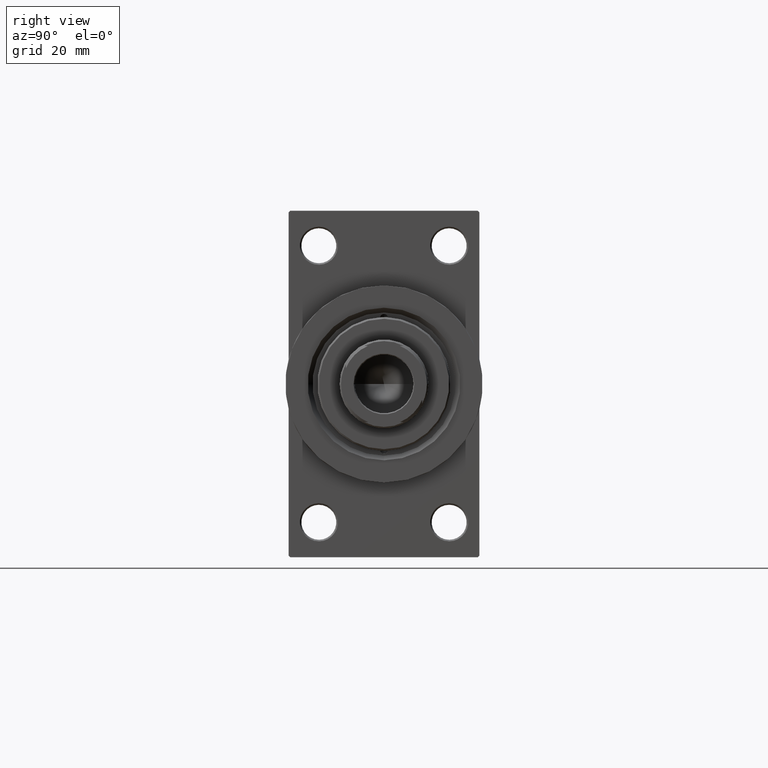
[diagram: clean part render]
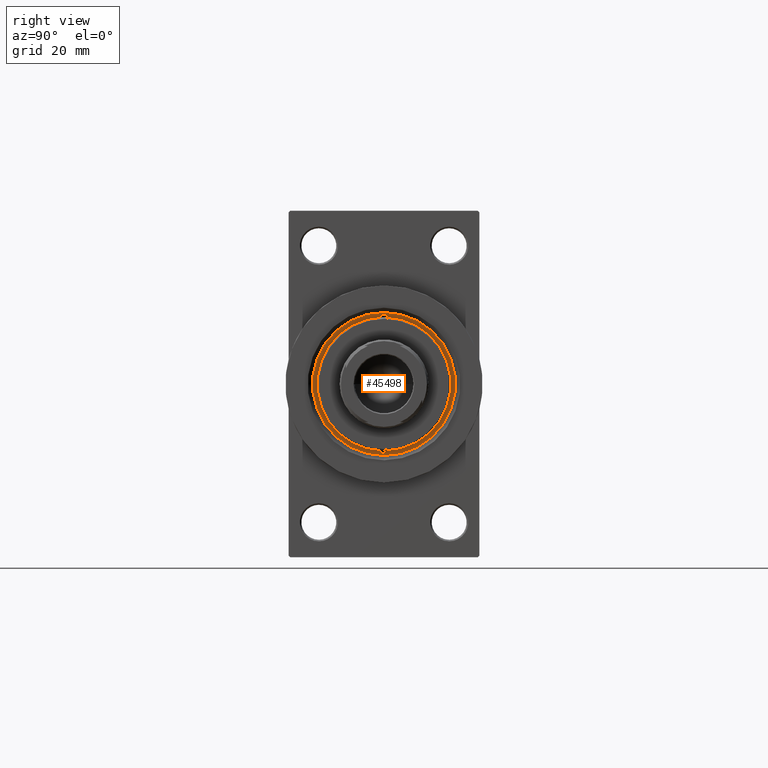
[diagram: same view with one face highlighted and labeled with its STEP entity id]
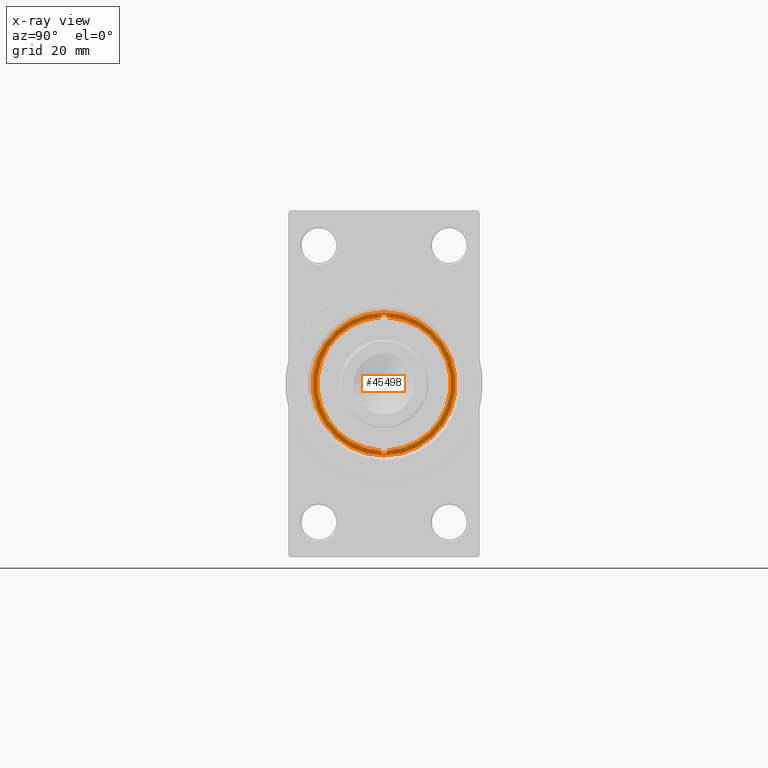
[diagram: x-ray of the same camera — body ghosted, the highlighted face saturated]
A machine part, right view. The second image highlights one B-rep face of the part: STEP entity #45498.
The next image is the same camera in x-ray: the body ghosted, the highlighted face saturated — about 0% of this face is hidden behind the body in this view.
In plain terms, the highlighted planar face has unit normal (1, -0, -0).
Its self-contained STEP definition (entity closure, byte-faithful):
#648 = DIRECTION ( 'NONE',  ( 0.000000000000000000, 0.000000000000000000, 1.000000000000000000 ) ) ;
#849 = ORIENTED_EDGE ( 'NONE', *, *, #18534, .F. ) ;
#1293 = CARTESIAN_POINT ( 'NONE',  ( -20.75000000000000000, 0.000000000000000000, 38.70000000000000284 ) ) ;
#1542 = DIRECTION ( 'NONE',  ( -0.000000000000000000, -0.000000000000000000, 1.000000000000000000 ) ) ;
#1748 = AXIS2_PLACEMENT_3D ( 'NONE', #16959, #9645, #24528 ) ;
#2958 = CARTESIAN_POINT ( 'NONE',  ( 0.000000000000000000, 0.000000000000000000, 38.70000000000000284 ) ) ;
#3044 = CARTESIAN_POINT ( 'NONE',  ( -20.96385542168674831, 1.231570484631375084, 38.70000000000000284 ) ) ;
#3497 = DIRECTION ( 'NONE',  ( 0.000000000000000000, 0.000000000000000000, 1.000000000000000000 ) ) ;
#3641 = DIRECTION ( 'NONE',  ( 1.000000000000000000, 0.000000000000000000, 0.000000000000000000 ) ) ;
#5018 = DIRECTION ( 'NONE',  ( 0.000000000000000000, 0.000000000000000000, 1.000000000000000000 ) ) ;
#5646 = CIRCLE ( 'NONE', #29788, 22.50000000000000355 ) ;
#5961 = ORIENTED_EDGE ( 'NONE', *, *, #20957, .F. ) ;
#6627 = PLANE ( 'NONE',  #22786 ) ;
#7640 = CARTESIAN_POINT ( 'NONE',  ( 20.75000000000000000, 0.000000000000000000, 38.70000000000000284 ) ) ;
#7959 = CARTESIAN_POINT ( 'NONE',  ( 0.000000000000000000, 0.000000000000000000, 38.70000000000000284 ) ) ;
#8656 = ORIENTED_EDGE ( 'NONE', *, *, #17045, .F. ) ;
#8861 = DIRECTION ( 'NONE',  ( 1.000000000000000000, 0.000000000000000000, 0.000000000000000000 ) ) ;
#9645 = DIRECTION ( 'NONE',  ( -0.000000000000000000, -0.000000000000000000, 1.000000000000000000 ) ) ;
#10629 = EDGE_CURVE ( 'NONE', #41528, #29066, #14887, .T. ) ;
#11270 = CARTESIAN_POINT ( 'NONE',  ( 20.96385542168675187, -1.231570484631374862, 38.70000000000000284 ) ) ;
#12124 = CIRCLE ( 'NONE', #39378, 1.249999999999990674 ) ;
#14192 = DIRECTION ( 'NONE',  ( 0.000000000000000000, 0.000000000000000000, 1.000000000000000000 ) ) ;
#14887 = CIRCLE ( 'NONE', #15695, 21.00000000000000000 ) ;
#15695 = AXIS2_PLACEMENT_3D ( 'NONE', #19914, #648, #34792 ) ;
#16098 = EDGE_CURVE ( 'NONE', #36859, #18208, #5646, .T. ) ;
#16597 = DIRECTION ( 'NONE',  ( -0.000000000000000000, -0.000000000000000000, 1.000000000000000000 ) ) ;
#16959 = CARTESIAN_POINT ( 'NONE',  ( -20.75000000000000000, 0.000000000000000000, 38.70000000000000284 ) ) ;
#17045 = EDGE_CURVE ( 'NONE', #32163, #27225, #22799, .T. ) ;
#18208 = VERTEX_POINT ( 'NONE', #48094 ) ;
#18534 = EDGE_CURVE ( 'NONE', #27225, #24515, #20532, .T. ) ;
#18916 = AXIS2_PLACEMENT_3D ( 'NONE', #43000, #1542, #46182 ) ;
#19914 = CARTESIAN_POINT ( 'NONE',  ( 0.000000000000000000, 0.000000000000000000, 38.70000000000000284 ) ) ;
#20532 = CIRCLE ( 'NONE', #36896, 21.00000000000000000 ) ;
#20698 = AXIS2_PLACEMENT_3D ( 'NONE', #21347, #3497, #32547 ) ;
#20957 = EDGE_CURVE ( 'NONE', #24515, #31506, #27490, .T. ) ;
#21330 = ORIENTED_EDGE ( 'NONE', *, *, #27553, .T. ) ;
#21347 = CARTESIAN_POINT ( 'NONE',  ( 0.000000000000000000, 0.000000000000000000, 38.70000000000000284 ) ) ;
#21614 = AXIS2_PLACEMENT_3D ( 'NONE', #1293, #46643, #8861 ) ;
#22786 = AXIS2_PLACEMENT_3D ( 'NONE', #2958, #14192, #41226 ) ;
#22799 = CIRCLE ( 'NONE', #1748, 1.249999999999990674 ) ;
#22847 = DIRECTION ( 'NONE',  ( 1.000000000000000000, 0.000000000000000000, 0.000000000000000000 ) ) ;
#23842 = CARTESIAN_POINT ( 'NONE',  ( -20.96385542168674831, -1.231570484631369089, 38.70000000000000284 ) ) ;
#24515 = VERTEX_POINT ( 'NONE', #11270 ) ;
#24528 = DIRECTION ( 'NONE',  ( 1.000000000000000000, 0.000000000000000000, 0.000000000000000000 ) ) ;
#25354 = EDGE_LOOP ( 'NONE', ( #21330, #34763 ) ) ;
#25960 = CARTESIAN_POINT ( 'NONE',  ( 21.99999999999999289, 0.000000000000000000, 38.70000000000000284 ) ) ;
#26300 = CARTESIAN_POINT ( 'NONE',  ( 20.96385542168674831, 1.231570484631366424, 38.70000000000000284 ) ) ;
#27225 = VERTEX_POINT ( 'NONE', #23842 ) ;
#27490 = CIRCLE ( 'NONE', #18916, 1.249999999999990674 ) ;
#27553 = EDGE_CURVE ( 'NONE', #18208, #36859, #40943, .T. ) ;
#27669 = EDGE_CURVE ( 'NONE', #31506, #41528, #12124, .T. ) ;
#29066 = VERTEX_POINT ( 'NONE', #3044 ) ;
#29788 = AXIS2_PLACEMENT_3D ( 'NONE', #7959, #5018, #22847 ) ;
#31506 = VERTEX_POINT ( 'NONE', #25960 ) ;
#31573 = EDGE_CURVE ( 'NONE', #29066, #32163, #34060, .T. ) ;
#32163 = VERTEX_POINT ( 'NONE', #47549 ) ;
#32547 = DIRECTION ( 'NONE',  ( 1.000000000000000000, 0.000000000000000000, 0.000000000000000000 ) ) ;
#33645 = DIRECTION ( 'NONE',  ( 0.000000000000000000, 0.000000000000000000, 1.000000000000000000 ) ) ;
#33677 = FACE_BOUND ( 'NONE', #46260, .T. ) ;
#34060 = CIRCLE ( 'NONE', #21614, 1.249999999999990674 ) ;
#34763 = ORIENTED_EDGE ( 'NONE', *, *, #16098, .T. ) ;
#34792 = DIRECTION ( 'NONE',  ( 1.000000000000000000, 0.000000000000000000, 0.000000000000000000 ) ) ;
#34943 = ORIENTED_EDGE ( 'NONE', *, *, #31573, .F. ) ;
#36859 = VERTEX_POINT ( 'NONE', #40463 ) ;
#36896 = AXIS2_PLACEMENT_3D ( 'NONE', #44140, #33645, #3641 ) ;
#37889 = DIRECTION ( 'NONE',  ( 1.000000000000000000, 0.000000000000000000, 0.000000000000000000 ) ) ;
#38157 = ORIENTED_EDGE ( 'NONE', *, *, #27669, .F. ) ;
#39378 = AXIS2_PLACEMENT_3D ( 'NONE', #7640, #16597, #37889 ) ;
#40463 = CARTESIAN_POINT ( 'NONE',  ( 22.50000000000000355, 2.755455298081545172E-15, 38.70000000000000284 ) ) ;
#40943 = CIRCLE ( 'NONE', #20698, 22.50000000000000355 ) ;
#41226 = DIRECTION ( 'NONE',  ( 1.000000000000000000, 0.000000000000000000, -0.000000000000000000 ) ) ;
#41528 = VERTEX_POINT ( 'NONE', #26300 ) ;
#43000 = CARTESIAN_POINT ( 'NONE',  ( 20.75000000000000000, 0.000000000000000000, 38.70000000000000284 ) ) ;
#44140 = CARTESIAN_POINT ( 'NONE',  ( 0.000000000000000000, 0.000000000000000000, 38.70000000000000284 ) ) ;
#44889 = FACE_OUTER_BOUND ( 'NONE', #25354, .T. ) ;
#45130 = ORIENTED_EDGE ( 'NONE', *, *, #10629, .F. ) ;
#45498 = ADVANCED_FACE ( 'NONE', ( #33677, #44889 ), #6627, .T. ) ;
#46182 = DIRECTION ( 'NONE',  ( 1.000000000000000000, 0.000000000000000000, 0.000000000000000000 ) ) ;
#46260 = EDGE_LOOP ( 'NONE', ( #34943, #45130, #38157, #5961, #849, #8656 ) ) ;
#46643 = DIRECTION ( 'NONE',  ( -0.000000000000000000, -0.000000000000000000, 1.000000000000000000 ) ) ;
#47549 = CARTESIAN_POINT ( 'NONE',  ( -21.99999999999999289, 1.530808498934178012E-16, 38.70000000000000284 ) ) ;
#48094 = CARTESIAN_POINT ( 'NONE',  ( -22.50000000000000355, 0.000000000000000000, 38.70000000000000284 ) ) ;